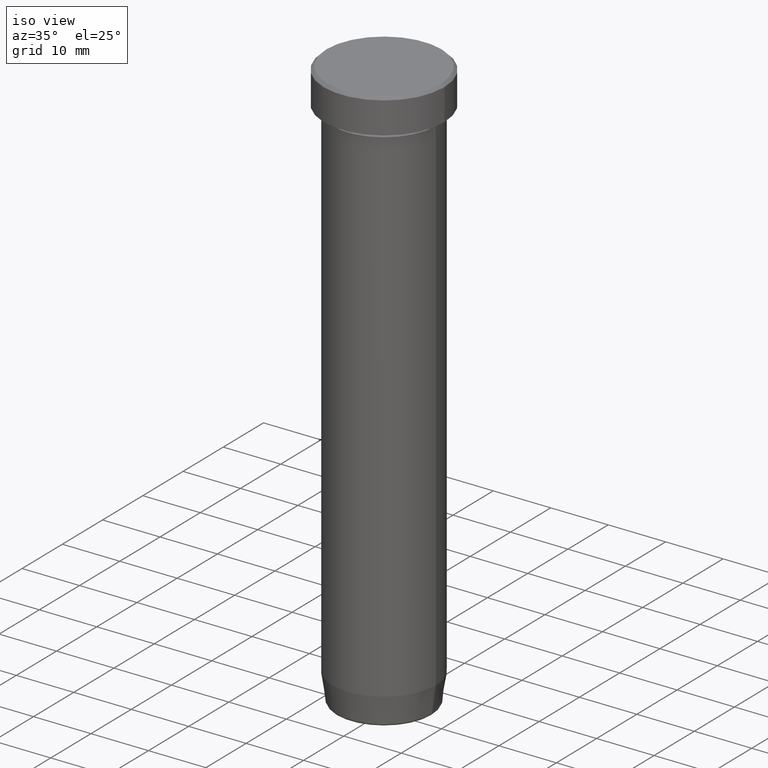
[diagram: clean part render]
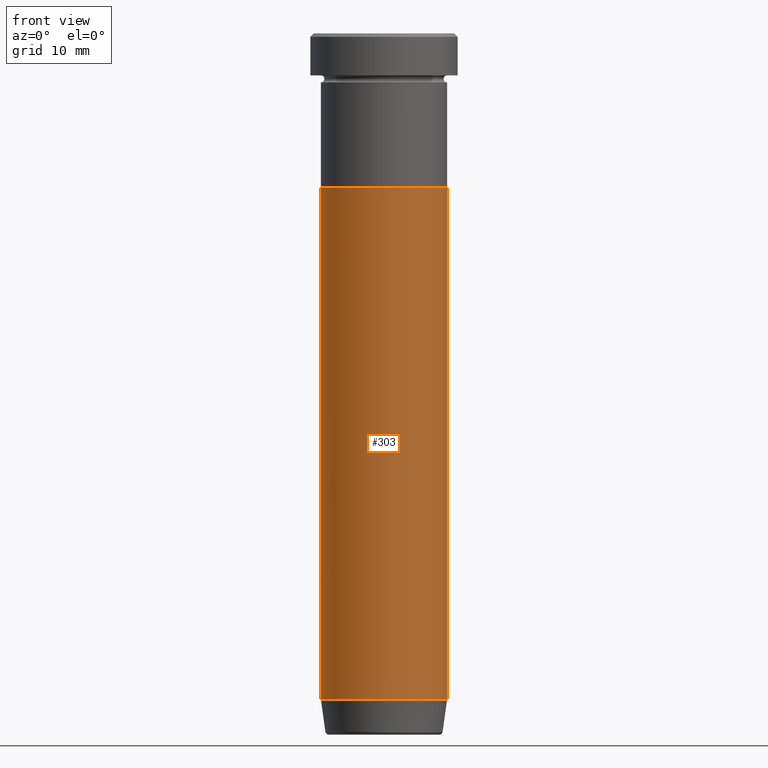
[diagram: tour spotlight — one face highlighted and labeled with its STEP entity id]
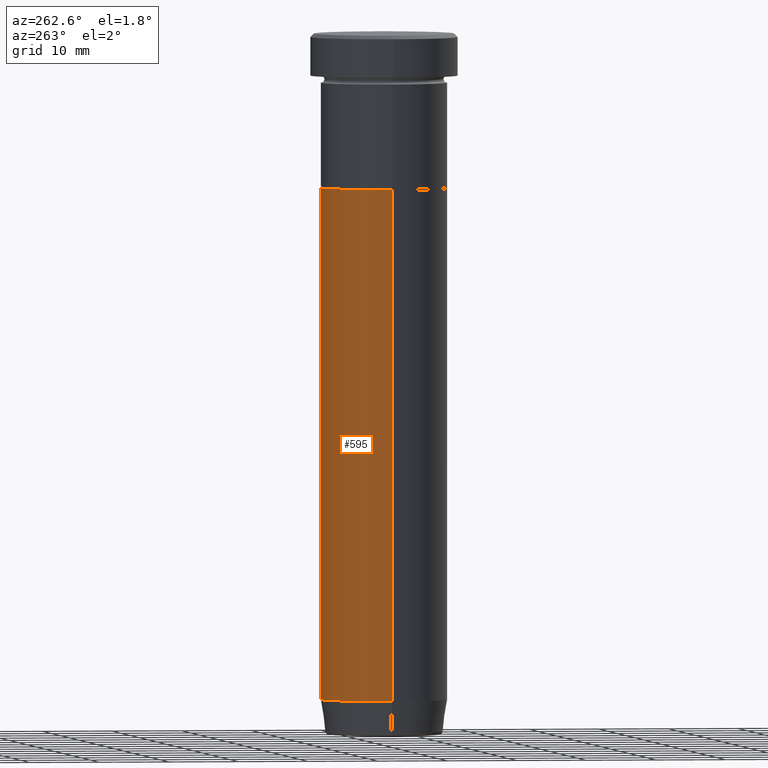
[diagram: tour spotlight — one face highlighted and labeled with its STEP entity id]
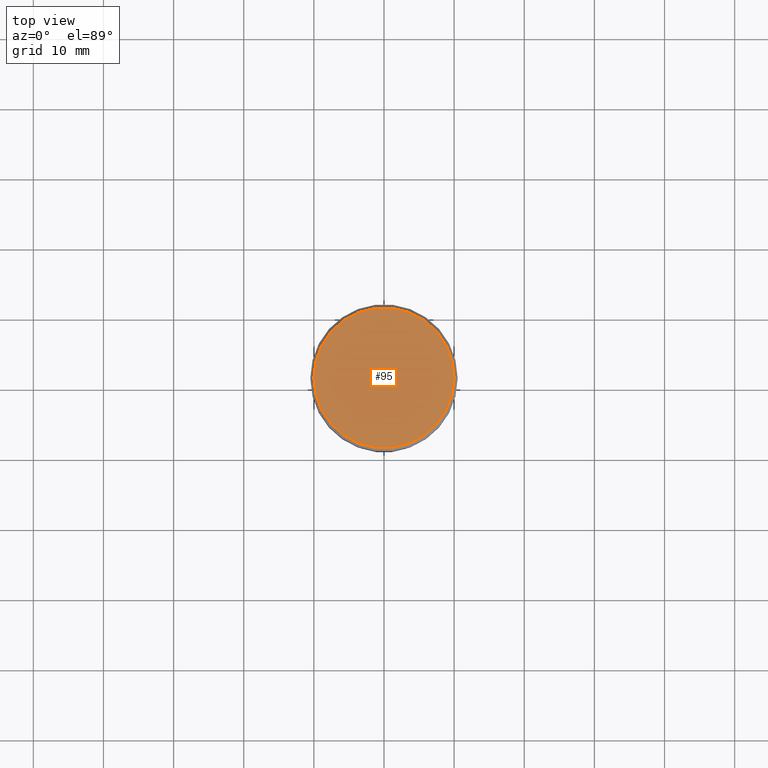
[diagram: tour spotlight — one face highlighted and labeled with its STEP entity id]
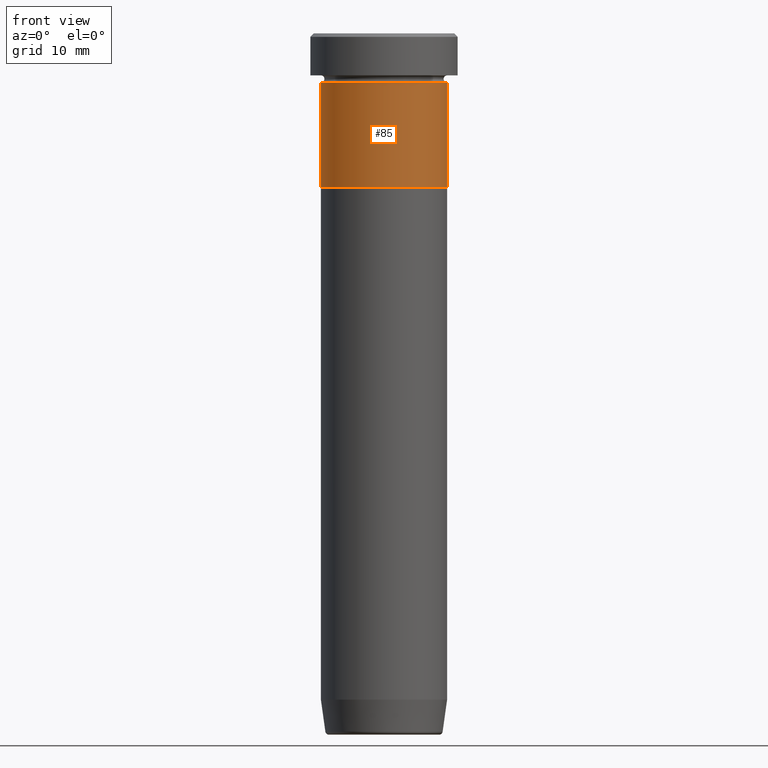
[diagram: tour spotlight — one face highlighted and labeled with its STEP entity id]
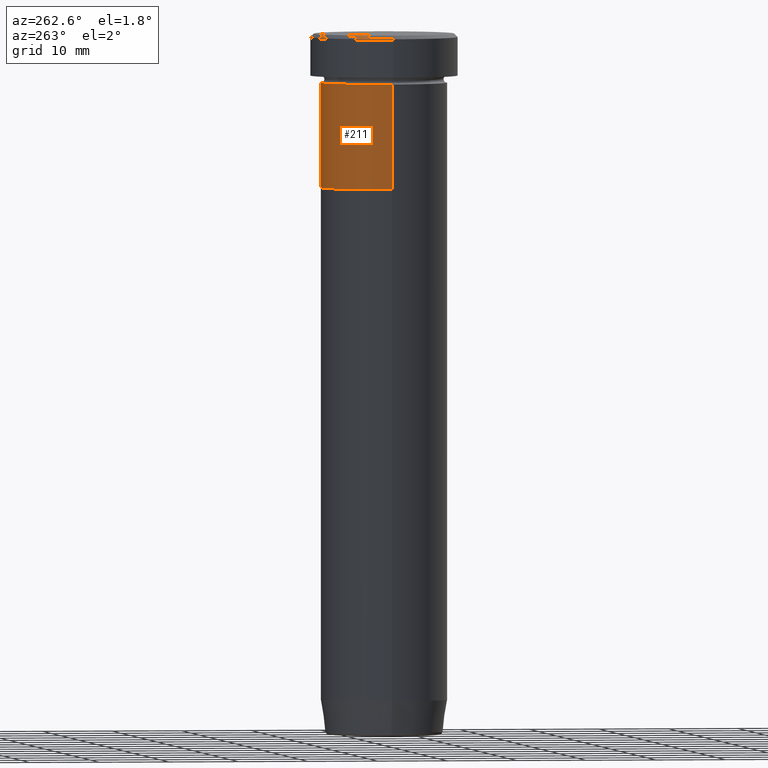
[diagram: tour spotlight — one face highlighted and labeled with its STEP entity id]
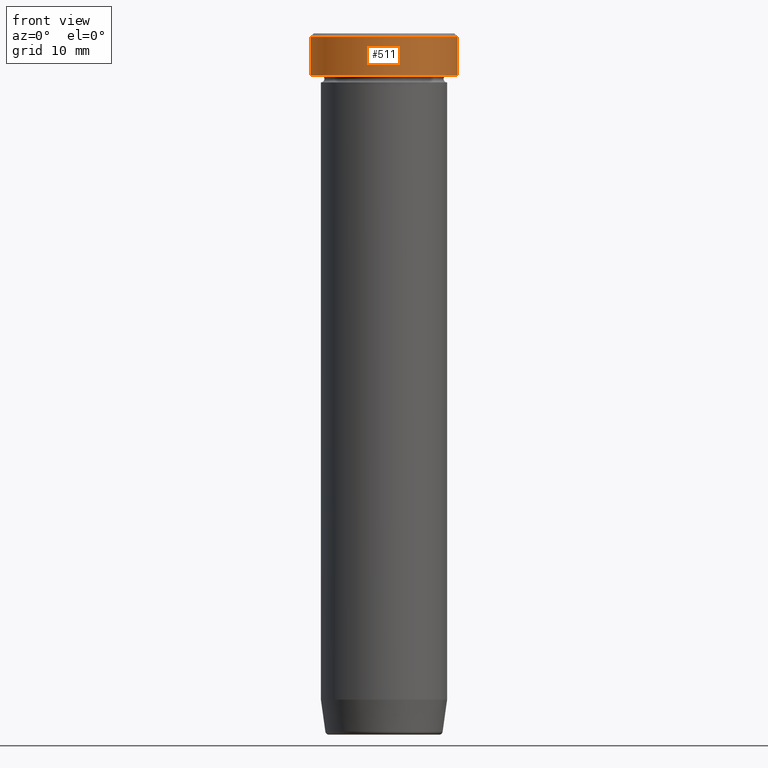
[diagram: tour spotlight — one face highlighted and labeled with its STEP entity id]
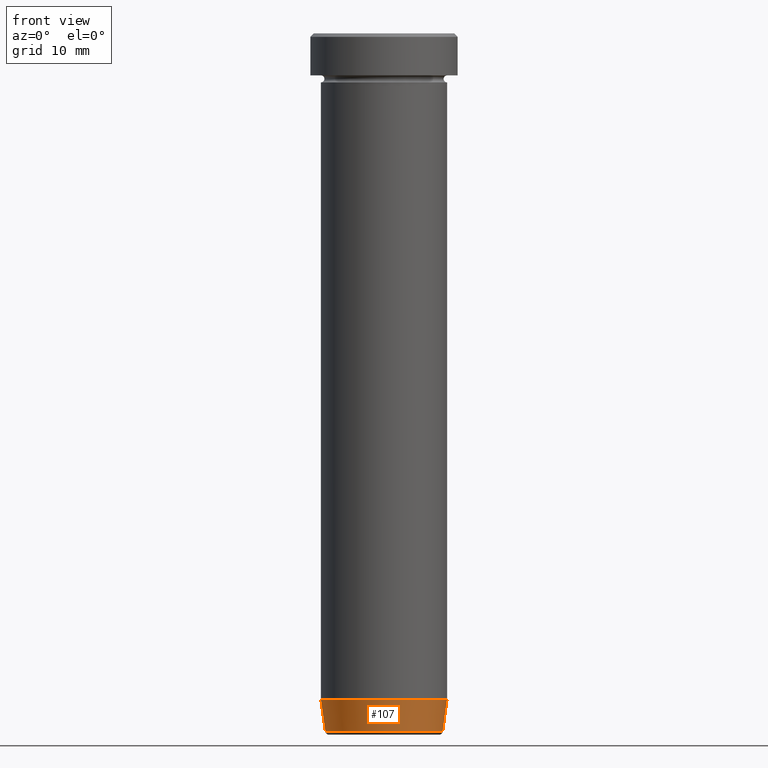
[diagram: tour spotlight — one face highlighted and labeled with its STEP entity id]
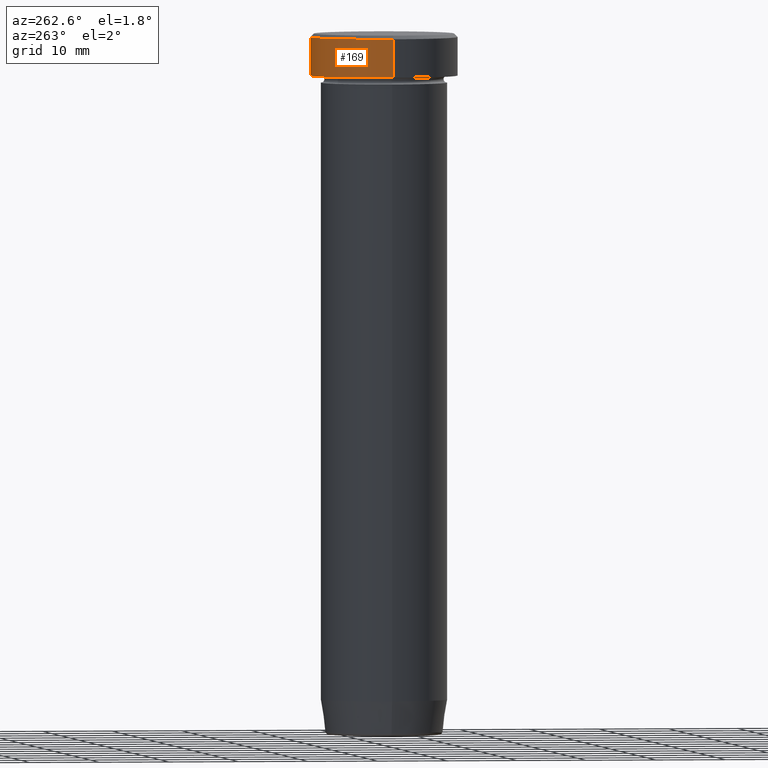
[diagram: tour spotlight — one face highlighted and labeled with its STEP entity id]
A machine part: a face-by-face anatomy tour. The part has 21 B-rep faces; the first image is the clean iso view, then the 8 largest visible faces are spotlighted one at a time (largest first), each with its STEP entity span.

Face 1 — front view, entity #303. In plain terms, the highlighted cylindrical surface (partial cylindrical patch) has radius 9 mm, axis along (-0, -0, 1).
Definition (entity closure, byte-faithful):
#1 = EDGE_CURVE ( 'NONE', #577, #441, #190, .T. ) ;
#21 = DIRECTION ( 'NONE',  ( 1.000000000000000000, 0.000000000000000000, 0.000000000000000000 ) ) ;
#30 = LINE ( 'NONE', #218, #166 ) ;
#34 = ORIENTED_EDGE ( 'NONE', *, *, #200, .T. ) ;
#71 = DIRECTION ( 'NONE',  ( -0.000000000000000000, -0.000000000000000000, 1.000000000000000000 ) ) ;
#166 = VECTOR ( 'NONE', #390, 1000.000000000000000 ) ;
#170 = ORIENTED_EDGE ( 'NONE', *, *, #331, .F. ) ;
#179 = FACE_OUTER_BOUND ( 'NONE', #237, .T. ) ;
#183 = ORIENTED_EDGE ( 'NONE', *, *, #1, .F. ) ;
#184 = CARTESIAN_POINT ( 'NONE',  ( 9.000000000000000000, 0.000000000000000000, 0.000000000000000000 ) ) ;
#190 = CIRCLE ( 'NONE', #598, 9.000000000000000000 ) ;
#200 = EDGE_CURVE ( 'NONE', #459, #266, #321, .T. ) ;
#203 = AXIS2_PLACEMENT_3D ( 'NONE', #431, #222, #21 ) ;
#218 = CARTESIAN_POINT ( 'NONE',  ( -9.000000000000000000, 1.102182119232617714E-15, 0.000000000000000000 ) ) ;
#222 = DIRECTION ( 'NONE',  ( -0.000000000000000000, -0.000000000000000000, 1.000000000000000000 ) ) ;
#237 = EDGE_LOOP ( 'NONE', ( #170, #34, #402, #183 ) ) ;
#239 = DIRECTION ( 'NONE',  ( -0.000000000000000000, -0.000000000000000000, 1.000000000000000000 ) ) ;
#266 = VERTEX_POINT ( 'NONE', #487 ) ;
#270 = LINE ( 'NONE', #184, #363 ) ;
#278 = CARTESIAN_POINT ( 'NONE',  ( -9.000000000000000000, 1.102182119232617714E-15, -95.00000000000000000 ) ) ;
#302 = CYLINDRICAL_SURFACE ( 'NONE', #203, 9.000000000000000000 ) ;
#303 = ADVANCED_FACE ( 'NONE', ( #179 ), #302, .T. ) ;
#321 = CIRCLE ( 'NONE', #417, 9.000000000000000000 ) ;
#331 = EDGE_CURVE ( 'NONE', #459, #577, #30, .T. ) ;
#363 = VECTOR ( 'NONE', #408, 1000.000000000000000 ) ;
#384 = DIRECTION ( 'NONE',  ( 1.000000000000000000, 0.000000000000000000, 0.000000000000000000 ) ) ;
#390 = DIRECTION ( 'NONE',  ( -0.000000000000000000, -0.000000000000000000, 1.000000000000000000 ) ) ;
#402 = ORIENTED_EDGE ( 'NONE', *, *, #446, .T. ) ;
#408 = DIRECTION ( 'NONE',  ( -0.000000000000000000, -0.000000000000000000, 1.000000000000000000 ) ) ;
#417 = AXIS2_PLACEMENT_3D ( 'NONE', #515, #239, #384 ) ;
#422 = CARTESIAN_POINT ( 'NONE',  ( -9.000000000000000000, 1.102182119232617714E-15, -22.00000000000000000 ) ) ;
#431 = CARTESIAN_POINT ( 'NONE',  ( 0.000000000000000000, 0.000000000000000000, 0.000000000000000000 ) ) ;
#441 = VERTEX_POINT ( 'NONE', #593 ) ;
#446 = EDGE_CURVE ( 'NONE', #266, #441, #270, .T. ) ;
#453 = DIRECTION ( 'NONE',  ( 1.000000000000000000, 0.000000000000000000, 0.000000000000000000 ) ) ;
#459 = VERTEX_POINT ( 'NONE', #278 ) ;
#474 = CARTESIAN_POINT ( 'NONE',  ( 0.000000000000000000, 0.000000000000000000, -22.00000000000000000 ) ) ;
#487 = CARTESIAN_POINT ( 'NONE',  ( 9.000000000000000000, 0.000000000000000000, -95.00000000000000000 ) ) ;
#515 = CARTESIAN_POINT ( 'NONE',  ( 0.000000000000000000, 0.000000000000000000, -95.00000000000000000 ) ) ;
#577 = VERTEX_POINT ( 'NONE', #422 ) ;
#593 = CARTESIAN_POINT ( 'NONE',  ( 9.000000000000000000, 0.000000000000000000, -22.00000000000000000 ) ) ;
#598 = AXIS2_PLACEMENT_3D ( 'NONE', #474, #71, #453 ) ;

Face 2 — auxiliary view, entity #595. In plain terms, the highlighted cylindrical surface (partial cylindrical patch) has radius 9 mm, axis along (-0, -0, 1).
Definition (entity closure, byte-faithful):
#15 = CIRCLE ( 'NONE', #58, 9.000000000000000000 ) ;
#30 = LINE ( 'NONE', #218, #166 ) ;
#58 = AXIS2_PLACEMENT_3D ( 'NONE', #502, #374, #543 ) ;
#91 = CIRCLE ( 'NONE', #315, 9.000000000000000000 ) ;
#114 = CYLINDRICAL_SURFACE ( 'NONE', #407, 9.000000000000000000 ) ;
#117 = ORIENTED_EDGE ( 'NONE', *, *, #570, .T. ) ;
#126 = ORIENTED_EDGE ( 'NONE', *, *, #373, .F. ) ;
#150 = DIRECTION ( 'NONE',  ( -0.000000000000000000, -0.000000000000000000, 1.000000000000000000 ) ) ;
#166 = VECTOR ( 'NONE', #390, 1000.000000000000000 ) ;
#184 = CARTESIAN_POINT ( 'NONE',  ( 9.000000000000000000, 0.000000000000000000, 0.000000000000000000 ) ) ;
#218 = CARTESIAN_POINT ( 'NONE',  ( -9.000000000000000000, 1.102182119232617714E-15, 0.000000000000000000 ) ) ;
#241 = CARTESIAN_POINT ( 'NONE',  ( 0.000000000000000000, 0.000000000000000000, -95.00000000000000000 ) ) ;
#244 = CARTESIAN_POINT ( 'NONE',  ( 0.000000000000000000, 0.000000000000000000, 0.000000000000000000 ) ) ;
#266 = VERTEX_POINT ( 'NONE', #487 ) ;
#270 = LINE ( 'NONE', #184, #363 ) ;
#278 = CARTESIAN_POINT ( 'NONE',  ( -9.000000000000000000, 1.102182119232617714E-15, -95.00000000000000000 ) ) ;
#315 = AXIS2_PLACEMENT_3D ( 'NONE', #241, #559, #378 ) ;
#325 = FACE_OUTER_BOUND ( 'NONE', #355, .T. ) ;
#331 = EDGE_CURVE ( 'NONE', #459, #577, #30, .T. ) ;
#355 = EDGE_LOOP ( 'NONE', ( #117, #531, #126, #566 ) ) ;
#363 = VECTOR ( 'NONE', #408, 1000.000000000000000 ) ;
#373 = EDGE_CURVE ( 'NONE', #441, #577, #15, .T. ) ;
#374 = DIRECTION ( 'NONE',  ( -0.000000000000000000, -0.000000000000000000, 1.000000000000000000 ) ) ;
#378 = DIRECTION ( 'NONE',  ( 1.000000000000000000, 0.000000000000000000, 0.000000000000000000 ) ) ;
#390 = DIRECTION ( 'NONE',  ( -0.000000000000000000, -0.000000000000000000, 1.000000000000000000 ) ) ;
#407 = AXIS2_PLACEMENT_3D ( 'NONE', #244, #150, #471 ) ;
#408 = DIRECTION ( 'NONE',  ( -0.000000000000000000, -0.000000000000000000, 1.000000000000000000 ) ) ;
#422 = CARTESIAN_POINT ( 'NONE',  ( -9.000000000000000000, 1.102182119232617714E-15, -22.00000000000000000 ) ) ;
#441 = VERTEX_POINT ( 'NONE', #593 ) ;
#446 = EDGE_CURVE ( 'NONE', #266, #441, #270, .T. ) ;
#459 = VERTEX_POINT ( 'NONE', #278 ) ;
#471 = DIRECTION ( 'NONE',  ( 1.000000000000000000, 0.000000000000000000, 0.000000000000000000 ) ) ;
#487 = CARTESIAN_POINT ( 'NONE',  ( 9.000000000000000000, 0.000000000000000000, -95.00000000000000000 ) ) ;
#502 = CARTESIAN_POINT ( 'NONE',  ( 0.000000000000000000, 0.000000000000000000, -22.00000000000000000 ) ) ;
#531 = ORIENTED_EDGE ( 'NONE', *, *, #331, .T. ) ;
#543 = DIRECTION ( 'NONE',  ( 1.000000000000000000, 0.000000000000000000, 0.000000000000000000 ) ) ;
#559 = DIRECTION ( 'NONE',  ( -0.000000000000000000, -0.000000000000000000, 1.000000000000000000 ) ) ;
#566 = ORIENTED_EDGE ( 'NONE', *, *, #446, .F. ) ;
#570 = EDGE_CURVE ( 'NONE', #266, #459, #91, .T. ) ;
#577 = VERTEX_POINT ( 'NONE', #422 ) ;
#593 = CARTESIAN_POINT ( 'NONE',  ( 9.000000000000000000, 0.000000000000000000, -22.00000000000000000 ) ) ;
#595 = ADVANCED_FACE ( 'NONE', ( #325 ), #114, .T. ) ;

Face 3 — top view, entity #95. In plain terms, the highlighted planar face has unit normal (0, -0, 1).
Definition (entity closure, byte-faithful):
#28 = AXIS2_PLACEMENT_3D ( 'NONE', #41, #52, #504 ) ;
#40 = CIRCLE ( 'NONE', #28, 10.00000000000000178 ) ;
#41 = CARTESIAN_POINT ( 'NONE',  ( 0.000000000000000000, 0.000000000000000000, 0.000000000000000000 ) ) ;
#52 = DIRECTION ( 'NONE',  ( -0.000000000000000000, -0.000000000000000000, 1.000000000000000000 ) ) ;
#92 = AXIS2_PLACEMENT_3D ( 'NONE', #503, #181, #463 ) ;
#95 = ADVANCED_FACE ( 'NONE', ( #590 ), #492, .T. ) ;
#97 = AXIS2_PLACEMENT_3D ( 'NONE', #340, #293, #555 ) ;
#130 = ORIENTED_EDGE ( 'NONE', *, *, #161, .T. ) ;
#135 = VERTEX_POINT ( 'NONE', #199 ) ;
#161 = EDGE_CURVE ( 'NONE', #135, #507, #312, .T. ) ;
#181 = DIRECTION ( 'NONE',  ( 0.000000000000000000, -0.000000000000000000, 1.000000000000000000 ) ) ;
#199 = CARTESIAN_POINT ( 'NONE',  ( 10.00000000000000178, 1.255262969126037241E-15, 0.000000000000000000 ) ) ;
#228 = CARTESIAN_POINT ( 'NONE',  ( -10.00000000000000178, 0.000000000000000000, 0.000000000000000000 ) ) ;
#293 = DIRECTION ( 'NONE',  ( -0.000000000000000000, -0.000000000000000000, 1.000000000000000000 ) ) ;
#312 = CIRCLE ( 'NONE', #97, 10.00000000000000178 ) ;
#340 = CARTESIAN_POINT ( 'NONE',  ( 0.000000000000000000, 0.000000000000000000, 0.000000000000000000 ) ) ;
#359 = EDGE_LOOP ( 'NONE', ( #532, #130 ) ) ;
#463 = DIRECTION ( 'NONE',  ( 1.000000000000000000, 0.000000000000000000, 0.000000000000000000 ) ) ;
#482 = EDGE_CURVE ( 'NONE', #507, #135, #40, .T. ) ;
#492 = PLANE ( 'NONE',  #92 ) ;
#503 = CARTESIAN_POINT ( 'NONE',  ( 0.000000000000000000, 0.000000000000000000, 0.000000000000000000 ) ) ;
#504 = DIRECTION ( 'NONE',  ( 1.000000000000000000, 0.000000000000000000, 0.000000000000000000 ) ) ;
#507 = VERTEX_POINT ( 'NONE', #228 ) ;
#532 = ORIENTED_EDGE ( 'NONE', *, *, #482, .T. ) ;
#555 = DIRECTION ( 'NONE',  ( 1.000000000000000000, 0.000000000000000000, 0.000000000000000000 ) ) ;
#590 = FACE_OUTER_BOUND ( 'NONE', #359, .T. ) ;

Face 4 — front view, entity #85. In plain terms, the highlighted cylindrical surface (partial cylindrical patch) has radius 9 mm, axis along (-0, -0, 1).
Definition (entity closure, byte-faithful):
#46 = AXIS2_PLACEMENT_3D ( 'NONE', #565, #116, #287 ) ;
#62 = CYLINDRICAL_SURFACE ( 'NONE', #289, 9.000000000000000000 ) ;
#72 = DIRECTION ( 'NONE',  ( -0.000000000000000000, -0.000000000000000000, 1.000000000000000000 ) ) ;
#79 = CIRCLE ( 'NONE', #46, 9.000000000000000000 ) ;
#85 = ADVANCED_FACE ( 'NONE', ( #290 ), #62, .T. ) ;
#89 = VECTOR ( 'NONE', #476, 1000.000000000000000 ) ;
#100 = ORIENTED_EDGE ( 'NONE', *, *, #554, .T. ) ;
#108 = DIRECTION ( 'NONE',  ( -0.000000000000000000, -0.000000000000000000, 1.000000000000000000 ) ) ;
#116 = DIRECTION ( 'NONE',  ( -0.000000000000000000, -0.000000000000000000, 1.000000000000000000 ) ) ;
#118 = CARTESIAN_POINT ( 'NONE',  ( 9.000000000000000000, 0.000000000000000000, -7.000000000000000000 ) ) ;
#134 = VERTEX_POINT ( 'NONE', #249 ) ;
#143 = DIRECTION ( 'NONE',  ( 1.000000000000000000, 0.000000000000000000, 0.000000000000000000 ) ) ;
#158 = VERTEX_POINT ( 'NONE', #118 ) ;
#159 = EDGE_CURVE ( 'NONE', #436, #158, #79, .T. ) ;
#162 = CARTESIAN_POINT ( 'NONE',  ( 9.000000000000000000, 0.000000000000000000, -22.00000000000000000 ) ) ;
#202 = DIRECTION ( 'NONE',  ( 1.000000000000000000, 0.000000000000000000, 0.000000000000000000 ) ) ;
#206 = VERTEX_POINT ( 'NONE', #162 ) ;
#243 = AXIS2_PLACEMENT_3D ( 'NONE', #464, #108, #202 ) ;
#249 = CARTESIAN_POINT ( 'NONE',  ( -9.000000000000000000, 1.102182119232617714E-15, -22.00000000000000000 ) ) ;
#252 = EDGE_LOOP ( 'NONE', ( #357, #100, #529, #271 ) ) ;
#268 = CARTESIAN_POINT ( 'NONE',  ( -9.000000000000000000, 1.102182119232617714E-15, 0.000000000000000000 ) ) ;
#271 = ORIENTED_EDGE ( 'NONE', *, *, #159, .F. ) ;
#282 = EDGE_CURVE ( 'NONE', #206, #158, #480, .T. ) ;
#287 = DIRECTION ( 'NONE',  ( 1.000000000000000000, 0.000000000000000000, 0.000000000000000000 ) ) ;
#289 = AXIS2_PLACEMENT_3D ( 'NONE', #320, #547, #143 ) ;
#290 = FACE_OUTER_BOUND ( 'NONE', #252, .T. ) ;
#300 = EDGE_CURVE ( 'NONE', #134, #436, #527, .T. ) ;
#314 = VECTOR ( 'NONE', #72, 1000.000000000000000 ) ;
#318 = CARTESIAN_POINT ( 'NONE',  ( -9.000000000000000000, 1.102182119232617714E-15, -7.000000000000000000 ) ) ;
#320 = CARTESIAN_POINT ( 'NONE',  ( 0.000000000000000000, 0.000000000000000000, 0.000000000000000000 ) ) ;
#357 = ORIENTED_EDGE ( 'NONE', *, *, #300, .F. ) ;
#436 = VERTEX_POINT ( 'NONE', #318 ) ;
#464 = CARTESIAN_POINT ( 'NONE',  ( 0.000000000000000000, 0.000000000000000000, -22.00000000000000000 ) ) ;
#476 = DIRECTION ( 'NONE',  ( -0.000000000000000000, -0.000000000000000000, 1.000000000000000000 ) ) ;
#480 = LINE ( 'NONE', #485, #89 ) ;
#485 = CARTESIAN_POINT ( 'NONE',  ( 9.000000000000000000, 0.000000000000000000, 0.000000000000000000 ) ) ;
#527 = LINE ( 'NONE', #268, #314 ) ;
#529 = ORIENTED_EDGE ( 'NONE', *, *, #282, .T. ) ;
#534 = CIRCLE ( 'NONE', #243, 9.000000000000000000 ) ;
#547 = DIRECTION ( 'NONE',  ( -0.000000000000000000, -0.000000000000000000, 1.000000000000000000 ) ) ;
#554 = EDGE_CURVE ( 'NONE', #134, #206, #534, .T. ) ;
#565 = CARTESIAN_POINT ( 'NONE',  ( 0.000000000000000000, 0.000000000000000000, -7.000000000000000000 ) ) ;

Face 5 — auxiliary view, entity #211. In plain terms, the highlighted cylindrical surface (partial cylindrical patch) has radius 9 mm, axis along (-0, -0, 1).
Definition (entity closure, byte-faithful):
#5 = CYLINDRICAL_SURFACE ( 'NONE', #36, 9.000000000000000000 ) ;
#19 = EDGE_CURVE ( 'NONE', #206, #134, #452, .T. ) ;
#36 = AXIS2_PLACEMENT_3D ( 'NONE', #329, #104, #540 ) ;
#37 = DIRECTION ( 'NONE',  ( 1.000000000000000000, 0.000000000000000000, 0.000000000000000000 ) ) ;
#39 = DIRECTION ( 'NONE',  ( -0.000000000000000000, -0.000000000000000000, 1.000000000000000000 ) ) ;
#53 = ORIENTED_EDGE ( 'NONE', *, *, #19, .T. ) ;
#72 = DIRECTION ( 'NONE',  ( -0.000000000000000000, -0.000000000000000000, 1.000000000000000000 ) ) ;
#89 = VECTOR ( 'NONE', #476, 1000.000000000000000 ) ;
#104 = DIRECTION ( 'NONE',  ( -0.000000000000000000, -0.000000000000000000, 1.000000000000000000 ) ) ;
#109 = AXIS2_PLACEMENT_3D ( 'NONE', #438, #535, #37 ) ;
#118 = CARTESIAN_POINT ( 'NONE',  ( 9.000000000000000000, 0.000000000000000000, -7.000000000000000000 ) ) ;
#134 = VERTEX_POINT ( 'NONE', #249 ) ;
#158 = VERTEX_POINT ( 'NONE', #118 ) ;
#162 = CARTESIAN_POINT ( 'NONE',  ( 9.000000000000000000, 0.000000000000000000, -22.00000000000000000 ) ) ;
#206 = VERTEX_POINT ( 'NONE', #162 ) ;
#211 = ADVANCED_FACE ( 'NONE', ( #419 ), #5, .T. ) ;
#224 = CARTESIAN_POINT ( 'NONE',  ( 0.000000000000000000, 0.000000000000000000, -22.00000000000000000 ) ) ;
#229 = EDGE_CURVE ( 'NONE', #158, #436, #406, .T. ) ;
#249 = CARTESIAN_POINT ( 'NONE',  ( -9.000000000000000000, 1.102182119232617714E-15, -22.00000000000000000 ) ) ;
#262 = ORIENTED_EDGE ( 'NONE', *, *, #300, .T. ) ;
#268 = CARTESIAN_POINT ( 'NONE',  ( -9.000000000000000000, 1.102182119232617714E-15, 0.000000000000000000 ) ) ;
#282 = EDGE_CURVE ( 'NONE', #206, #158, #480, .T. ) ;
#300 = EDGE_CURVE ( 'NONE', #134, #436, #527, .T. ) ;
#314 = VECTOR ( 'NONE', #72, 1000.000000000000000 ) ;
#318 = CARTESIAN_POINT ( 'NONE',  ( -9.000000000000000000, 1.102182119232617714E-15, -7.000000000000000000 ) ) ;
#329 = CARTESIAN_POINT ( 'NONE',  ( 0.000000000000000000, 0.000000000000000000, 0.000000000000000000 ) ) ;
#338 = AXIS2_PLACEMENT_3D ( 'NONE', #224, #39, #591 ) ;
#345 = ORIENTED_EDGE ( 'NONE', *, *, #282, .F. ) ;
#385 = EDGE_LOOP ( 'NONE', ( #53, #262, #412, #345 ) ) ;
#406 = CIRCLE ( 'NONE', #109, 9.000000000000000000 ) ;
#412 = ORIENTED_EDGE ( 'NONE', *, *, #229, .F. ) ;
#419 = FACE_OUTER_BOUND ( 'NONE', #385, .T. ) ;
#436 = VERTEX_POINT ( 'NONE', #318 ) ;
#438 = CARTESIAN_POINT ( 'NONE',  ( 0.000000000000000000, 0.000000000000000000, -7.000000000000000000 ) ) ;
#452 = CIRCLE ( 'NONE', #338, 9.000000000000000000 ) ;
#476 = DIRECTION ( 'NONE',  ( -0.000000000000000000, -0.000000000000000000, 1.000000000000000000 ) ) ;
#480 = LINE ( 'NONE', #485, #89 ) ;
#485 = CARTESIAN_POINT ( 'NONE',  ( 9.000000000000000000, 0.000000000000000000, 0.000000000000000000 ) ) ;
#527 = LINE ( 'NONE', #268, #314 ) ;
#535 = DIRECTION ( 'NONE',  ( -0.000000000000000000, -0.000000000000000000, 1.000000000000000000 ) ) ;
#540 = DIRECTION ( 'NONE',  ( 1.000000000000000000, 0.000000000000000000, 0.000000000000000000 ) ) ;
#591 = DIRECTION ( 'NONE',  ( 1.000000000000000000, 0.000000000000000000, 0.000000000000000000 ) ) ;

Face 6 — front view, entity #511. In plain terms, the highlighted cylindrical surface (partial cylindrical patch) has radius 10.5 mm, axis along (-0, -0, 1).
Definition (entity closure, byte-faithful):
#2 = CARTESIAN_POINT ( 'NONE',  ( 0.000000000000000000, 0.000000000000000000, -0.5000000000000023315 ) ) ;
#32 = CARTESIAN_POINT ( 'NONE',  ( -10.50000000000000000, 1.285879139104720831E-15, -0.5000000000000023315 ) ) ;
#44 = EDGE_CURVE ( 'NONE', #491, #255, #558, .T. ) ;
#48 = FACE_OUTER_BOUND ( 'NONE', #223, .T. ) ;
#49 = VECTOR ( 'NONE', #84, 1000.000000000000000 ) ;
#61 = CARTESIAN_POINT ( 'NONE',  ( 10.50000000000000000, 0.000000000000000000, -0.5000000000000023315 ) ) ;
#66 = ORIENTED_EDGE ( 'NONE', *, *, #44, .F. ) ;
#84 = DIRECTION ( 'NONE',  ( -0.000000000000000000, -0.000000000000000000, 1.000000000000000000 ) ) ;
#94 = CARTESIAN_POINT ( 'NONE',  ( 0.000000000000000000, 0.000000000000000000, 0.000000000000000000 ) ) ;
#111 = CARTESIAN_POINT ( 'NONE',  ( -10.50000000000000000, 1.285879139104720831E-15, 0.000000000000000000 ) ) ;
#164 = VERTEX_POINT ( 'NONE', #61 ) ;
#165 = LINE ( 'NONE', #168, #49 ) ;
#168 = CARTESIAN_POINT ( 'NONE',  ( 10.50000000000000000, 0.000000000000000000, 0.000000000000000000 ) ) ;
#195 = VERTEX_POINT ( 'NONE', #423 ) ;
#198 = VECTOR ( 'NONE', #333, 1000.000000000000000 ) ;
#223 = EDGE_LOOP ( 'NONE', ( #66, #232, #395, #405 ) ) ;
#231 = DIRECTION ( 'NONE',  ( -0.000000000000000000, -0.000000000000000000, 1.000000000000000000 ) ) ;
#232 = ORIENTED_EDGE ( 'NONE', *, *, #579, .T. ) ;
#255 = VERTEX_POINT ( 'NONE', #32 ) ;
#269 = EDGE_CURVE ( 'NONE', #195, #164, #165, .T. ) ;
#279 = AXIS2_PLACEMENT_3D ( 'NONE', #2, #322, #597 ) ;
#285 = DIRECTION ( 'NONE',  ( -0.000000000000000000, -0.000000000000000000, 1.000000000000000000 ) ) ;
#316 = CYLINDRICAL_SURFACE ( 'NONE', #458, 10.50000000000000000 ) ;
#322 = DIRECTION ( 'NONE',  ( 0.000000000000000000, 0.000000000000000000, -1.000000000000000000 ) ) ;
#333 = DIRECTION ( 'NONE',  ( -0.000000000000000000, -0.000000000000000000, 1.000000000000000000 ) ) ;
#335 = DIRECTION ( 'NONE',  ( 1.000000000000000000, 0.000000000000000000, 0.000000000000000000 ) ) ;
#368 = CARTESIAN_POINT ( 'NONE',  ( -10.50000000000000000, 1.285879139104720831E-15, -6.000000000000000000 ) ) ;
#391 = CIRCLE ( 'NONE', #279, 10.50000000000000000 ) ;
#392 = AXIS2_PLACEMENT_3D ( 'NONE', #506, #285, #335 ) ;
#395 = ORIENTED_EDGE ( 'NONE', *, *, #269, .T. ) ;
#399 = EDGE_CURVE ( 'NONE', #164, #255, #391, .T. ) ;
#405 = ORIENTED_EDGE ( 'NONE', *, *, #399, .T. ) ;
#411 = DIRECTION ( 'NONE',  ( 1.000000000000000000, 0.000000000000000000, 0.000000000000000000 ) ) ;
#423 = CARTESIAN_POINT ( 'NONE',  ( 10.50000000000000000, 0.000000000000000000, -6.000000000000000000 ) ) ;
#458 = AXIS2_PLACEMENT_3D ( 'NONE', #94, #231, #411 ) ;
#491 = VERTEX_POINT ( 'NONE', #368 ) ;
#506 = CARTESIAN_POINT ( 'NONE',  ( 0.000000000000000000, 0.000000000000000000, -6.000000000000000000 ) ) ;
#511 = ADVANCED_FACE ( 'NONE', ( #48 ), #316, .T. ) ;
#522 = CIRCLE ( 'NONE', #392, 10.50000000000000000 ) ;
#558 = LINE ( 'NONE', #111, #198 ) ;
#579 = EDGE_CURVE ( 'NONE', #491, #195, #522, .T. ) ;
#597 = DIRECTION ( 'NONE',  ( 1.000000000000000000, 0.000000000000000000, 0.000000000000000000 ) ) ;

Face 7 — front view, entity #107. In plain terms, the highlighted conical surface has half-angle 8 deg.
Definition (entity closure, byte-faithful):
#7 = VECTOR ( 'NONE', #461, 1000.000000000000000 ) ;
#16 = ORIENTED_EDGE ( 'NONE', *, *, #437, .T. ) ;
#26 = VERTEX_POINT ( 'NONE', #55 ) ;
#55 = CARTESIAN_POINT ( 'NONE',  ( 8.357786491950712104, 0.000000000000000000, -99.56958655048003948 ) ) ;
#63 = DIRECTION ( 'NONE',  ( -0.000000000000000000, -0.000000000000000000, 1.000000000000000000 ) ) ;
#69 = LINE ( 'NONE', #415, #7 ) ;
#78 = ORIENTED_EDGE ( 'NONE', *, *, #457, .T. ) ;
#93 = EDGE_CURVE ( 'NONE', #582, #459, #69, .T. ) ;
#101 = VECTOR ( 'NONE', #449, 1000.000000000000000 ) ;
#107 = ADVANCED_FACE ( 'NONE', ( #234 ), #175, .T. ) ;
#145 = AXIS2_PLACEMENT_3D ( 'NONE', #550, #194, #372 ) ;
#175 = CONICAL_SURFACE ( 'NONE', #319, 8.297295826488038983, 0.1396263401595468356 ) ;
#177 = EDGE_LOOP ( 'NONE', ( #427, #16, #78, #495 ) ) ;
#194 = DIRECTION ( 'NONE',  ( -0.000000000000000000, -0.000000000000000000, 1.000000000000000000 ) ) ;
#200 = EDGE_CURVE ( 'NONE', #459, #266, #321, .T. ) ;
#220 = CARTESIAN_POINT ( 'NONE',  ( 0.000000000000000000, 0.000000000000000000, -100.0000000000000000 ) ) ;
#234 = FACE_OUTER_BOUND ( 'NONE', #177, .T. ) ;
#239 = DIRECTION ( 'NONE',  ( -0.000000000000000000, -0.000000000000000000, 1.000000000000000000 ) ) ;
#266 = VERTEX_POINT ( 'NONE', #487 ) ;
#278 = CARTESIAN_POINT ( 'NONE',  ( -9.000000000000000000, 1.102182119232617714E-15, -95.00000000000000000 ) ) ;
#319 = AXIS2_PLACEMENT_3D ( 'NONE', #220, #63, #343 ) ;
#321 = CIRCLE ( 'NONE', #417, 9.000000000000000000 ) ;
#343 = DIRECTION ( 'NONE',  ( 1.000000000000000000, 0.000000000000000000, 0.000000000000000000 ) ) ;
#372 = DIRECTION ( 'NONE',  ( -1.000000000000000000, 0.000000000000000000, 0.000000000000000000 ) ) ;
#384 = DIRECTION ( 'NONE',  ( 1.000000000000000000, 0.000000000000000000, 0.000000000000000000 ) ) ;
#415 = CARTESIAN_POINT ( 'NONE',  ( -8.297295826488038983, 1.016125677548726948E-15, -100.0000000000000000 ) ) ;
#417 = AXIS2_PLACEMENT_3D ( 'NONE', #515, #239, #384 ) ;
#427 = ORIENTED_EDGE ( 'NONE', *, *, #93, .F. ) ;
#437 = EDGE_CURVE ( 'NONE', #582, #26, #488, .T. ) ;
#449 = DIRECTION ( 'NONE',  ( 0.1391731009600659097, 0.000000000000000000, 0.9902680687415702510 ) ) ;
#457 = EDGE_CURVE ( 'NONE', #26, #266, #499, .T. ) ;
#459 = VERTEX_POINT ( 'NONE', #278 ) ;
#461 = DIRECTION ( 'NONE',  ( -0.1391731009600659097, 1.704378926181561528E-17, 0.9902680687415702510 ) ) ;
#487 = CARTESIAN_POINT ( 'NONE',  ( 9.000000000000000000, 0.000000000000000000, -95.00000000000000000 ) ) ;
#488 = CIRCLE ( 'NONE', #145, 8.357786491950712104 ) ;
#495 = ORIENTED_EDGE ( 'NONE', *, *, #200, .F. ) ;
#499 = LINE ( 'NONE', #542, #101 ) ;
#515 = CARTESIAN_POINT ( 'NONE',  ( 0.000000000000000000, 0.000000000000000000, -95.00000000000000000 ) ) ;
#542 = CARTESIAN_POINT ( 'NONE',  ( 8.297295826488038983, 0.000000000000000000, -100.0000000000000000 ) ) ;
#550 = CARTESIAN_POINT ( 'NONE',  ( 0.000000000000000000, 0.000000000000000000, -99.56958655048003948 ) ) ;
#564 = CARTESIAN_POINT ( 'NONE',  ( -8.357786491950712104, 1.062857883382530313E-15, -99.56958655048003948 ) ) ;
#582 = VERTEX_POINT ( 'NONE', #564 ) ;

Face 8 — auxiliary view, entity #169. In plain terms, the highlighted cylindrical surface (partial cylindrical patch) has radius 10.5 mm, axis along (-0, -0, 1).
Definition (entity closure, byte-faithful):
#32 = CARTESIAN_POINT ( 'NONE',  ( -10.50000000000000000, 1.285879139104720831E-15, -0.5000000000000023315 ) ) ;
#44 = EDGE_CURVE ( 'NONE', #491, #255, #558, .T. ) ;
#49 = VECTOR ( 'NONE', #84, 1000.000000000000000 ) ;
#61 = CARTESIAN_POINT ( 'NONE',  ( 10.50000000000000000, 0.000000000000000000, -0.5000000000000023315 ) ) ;
#65 = AXIS2_PLACEMENT_3D ( 'NONE', #557, #284, #151 ) ;
#84 = DIRECTION ( 'NONE',  ( -0.000000000000000000, -0.000000000000000000, 1.000000000000000000 ) ) ;
#111 = CARTESIAN_POINT ( 'NONE',  ( -10.50000000000000000, 1.285879139104720831E-15, 0.000000000000000000 ) ) ;
#140 = EDGE_CURVE ( 'NONE', #195, #491, #596, .T. ) ;
#148 = DIRECTION ( 'NONE',  ( -0.000000000000000000, -0.000000000000000000, 1.000000000000000000 ) ) ;
#151 = DIRECTION ( 'NONE',  ( 1.000000000000000000, 0.000000000000000000, 0.000000000000000000 ) ) ;
#164 = VERTEX_POINT ( 'NONE', #61 ) ;
#165 = LINE ( 'NONE', #168, #49 ) ;
#168 = CARTESIAN_POINT ( 'NONE',  ( 10.50000000000000000, 0.000000000000000000, 0.000000000000000000 ) ) ;
#169 = ADVANCED_FACE ( 'NONE', ( #337 ), #426, .T. ) ;
#195 = VERTEX_POINT ( 'NONE', #423 ) ;
#198 = VECTOR ( 'NONE', #333, 1000.000000000000000 ) ;
#213 = EDGE_CURVE ( 'NONE', #255, #164, #295, .T. ) ;
#255 = VERTEX_POINT ( 'NONE', #32 ) ;
#269 = EDGE_CURVE ( 'NONE', #195, #164, #165, .T. ) ;
#284 = DIRECTION ( 'NONE',  ( -0.000000000000000000, -0.000000000000000000, 1.000000000000000000 ) ) ;
#295 = CIRCLE ( 'NONE', #369, 10.50000000000000000 ) ;
#333 = DIRECTION ( 'NONE',  ( -0.000000000000000000, -0.000000000000000000, 1.000000000000000000 ) ) ;
#337 = FACE_OUTER_BOUND ( 'NONE', #581, .T. ) ;
#344 = AXIS2_PLACEMENT_3D ( 'NONE', #560, #148, #469 ) ;
#350 = ORIENTED_EDGE ( 'NONE', *, *, #269, .F. ) ;
#368 = CARTESIAN_POINT ( 'NONE',  ( -10.50000000000000000, 1.285879139104720831E-15, -6.000000000000000000 ) ) ;
#369 = AXIS2_PLACEMENT_3D ( 'NONE', #587, #442, #434 ) ;
#382 = ORIENTED_EDGE ( 'NONE', *, *, #140, .T. ) ;
#393 = ORIENTED_EDGE ( 'NONE', *, *, #213, .T. ) ;
#423 = CARTESIAN_POINT ( 'NONE',  ( 10.50000000000000000, 0.000000000000000000, -6.000000000000000000 ) ) ;
#426 = CYLINDRICAL_SURFACE ( 'NONE', #65, 10.50000000000000000 ) ;
#434 = DIRECTION ( 'NONE',  ( 1.000000000000000000, 0.000000000000000000, 0.000000000000000000 ) ) ;
#442 = DIRECTION ( 'NONE',  ( 0.000000000000000000, 0.000000000000000000, -1.000000000000000000 ) ) ;
#469 = DIRECTION ( 'NONE',  ( 1.000000000000000000, 0.000000000000000000, 0.000000000000000000 ) ) ;
#483 = ORIENTED_EDGE ( 'NONE', *, *, #44, .T. ) ;
#491 = VERTEX_POINT ( 'NONE', #368 ) ;
#557 = CARTESIAN_POINT ( 'NONE',  ( 0.000000000000000000, 0.000000000000000000, 0.000000000000000000 ) ) ;
#558 = LINE ( 'NONE', #111, #198 ) ;
#560 = CARTESIAN_POINT ( 'NONE',  ( 0.000000000000000000, 0.000000000000000000, -6.000000000000000000 ) ) ;
#581 = EDGE_LOOP ( 'NONE', ( #382, #483, #393, #350 ) ) ;
#587 = CARTESIAN_POINT ( 'NONE',  ( 0.000000000000000000, 0.000000000000000000, -0.5000000000000023315 ) ) ;
#596 = CIRCLE ( 'NONE', #344, 10.50000000000000000 ) ;